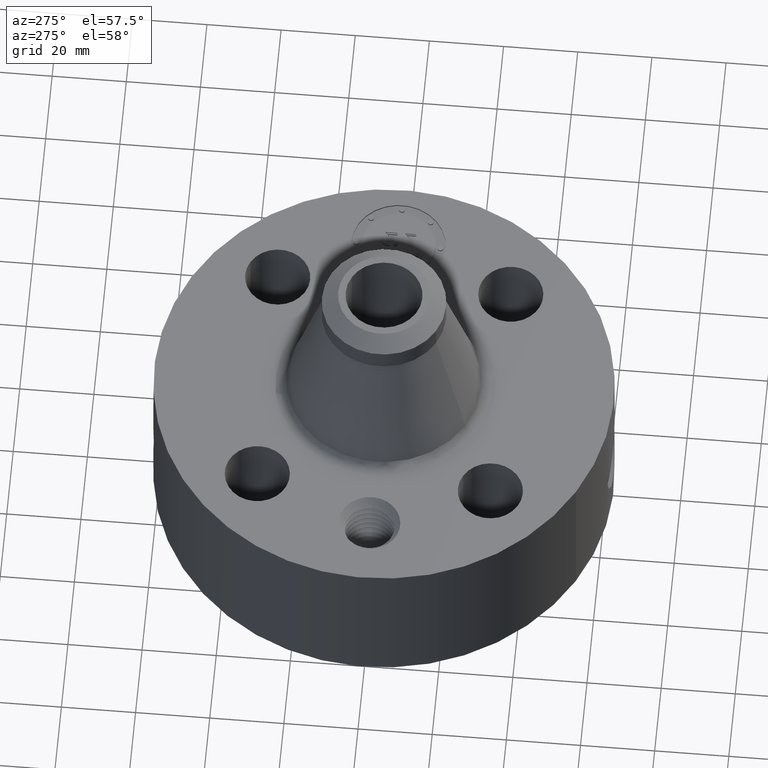
[diagram: clean part render]
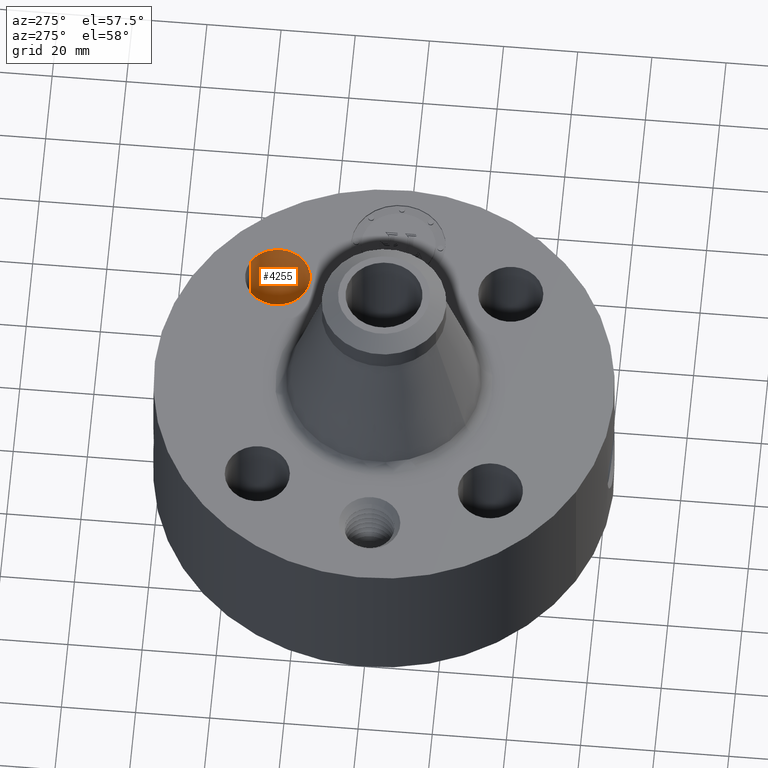
[diagram: same view with one face highlighted and labeled with its STEP entity id]
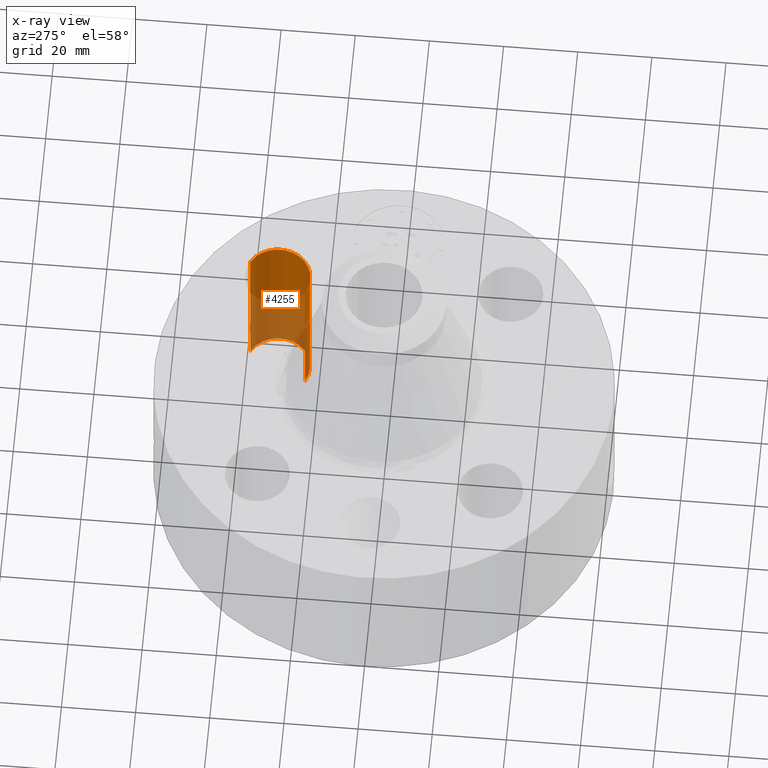
[diagram: x-ray of the same camera — body ghosted, the highlighted face saturated]
A machine part, auxiliary view. The second image highlights one B-rep face of the part: STEP entity #4255.
The next image is the same camera in x-ray: the body ghosted, the highlighted face saturated — about 47% of this face is hidden behind the body in this view.
In plain terms, the highlighted cylindrical surface (edge-blend (fillet) strip) has radius 8.763 mm, axis along (0, 0, -1).
Its self-contained STEP definition (entity closure, byte-faithful):
#3024=AXIS2_PLACEMENT_3D('Circle Axis2P3D',#3022,#3023,$) ;
#4216=AXIS2_PLACEMENT_3D('Cylinder Axis2P3D',#4213,#4214,#4215) ;
#4246=AXIS2_PLACEMENT_3D('Circle Axis2P3D',#4244,#4245,$) ;
#3022=CARTESIAN_POINT('Axis2P3D Location',(1.23743686708,1.23743686708,1.75000000001)) ;
#3026=CARTESIAN_POINT('Vertex',(1.4028386779,1.54020285093,1.75000000001)) ;
#3028=CARTESIAN_POINT('Vertex',(1.07203505626,0.934670883228,1.75000000001)) ;
#4213=CARTESIAN_POINT('Axis2P3D Location',(1.23743686708,1.23743686708,1.74606299213)) ;
#4218=CARTESIAN_POINT('Line Origine',(1.07203505626,0.934670883228,0.875000000003)) ;
#4222=CARTESIAN_POINT('Vertex',(1.07203505626,0.934670883228,0.)) ;
#4229=CARTESIAN_POINT('Vertex',(1.4028386779,1.54020285093,0.)) ;
#4232=CARTESIAN_POINT('Line Origine',(1.4028386779,1.54020285093,0.875000000003)) ;
#4244=CARTESIAN_POINT('Axis2P3D Location',(1.23743686708,1.23743686708,0.)) ;
#3023=DIRECTION('Axis2P3D Direction',(0.,0.,-0.0393700787402)) ;
#4214=DIRECTION('Axis2P3D Direction',(0.,0.,-0.0393700787402)) ;
#4215=DIRECTION('Axis2P3D XDirection',(0.0188750212049,0.0345504945626,0.)) ;
#4219=DIRECTION('Vector Direction',(0.,0.,-0.0393700787402)) ;
#4233=DIRECTION('Vector Direction',(0.,0.,-0.0393700787402)) ;
#4245=DIRECTION('Axis2P3D Direction',(0.,0.,-0.0393700787402)) ;
#4220=VECTOR('Line Direction',#4219,0.0393700787402) ;
#4234=VECTOR('Line Direction',#4233,0.0393700787402) ;
#4250=ORIENTED_EDGE('',*,*,#4236,.F.) ;
#4251=ORIENTED_EDGE('',*,*,#4248,.T.) ;
#4252=ORIENTED_EDGE('',*,*,#4224,.T.) ;
#4253=ORIENTED_EDGE('',*,*,#3030,.F.) ;
#4255=ADVANCED_FACE('PartBody',(#4254),#4217,.F.) ;
#3025=CIRCLE('generated circle',#3024,0.345000000001) ;
#4247=CIRCLE('generated circle',#4246,0.345000000001) ;
#4217=CYLINDRICAL_SURFACE('generated cylinder',#4216,0.345000000001) ;
#3030=EDGE_CURVE('',#3027,#3029,#3025,.T.) ;
#4224=EDGE_CURVE('',#4223,#3029,#4221,.F.) ;
#4236=EDGE_CURVE('',#4230,#3027,#4235,.F.) ;
#4248=EDGE_CURVE('',#4230,#4223,#4247,.T.) ;
#4249=EDGE_LOOP('',(#4250,#4251,#4252,#4253)) ;
#4254=FACE_OUTER_BOUND('',#4249,.T.) ;
#4221=LINE('Line',#4218,#4220) ;
#4235=LINE('Line',#4232,#4234) ;
#3027=VERTEX_POINT('',#3026) ;
#3029=VERTEX_POINT('',#3028) ;
#4223=VERTEX_POINT('',#4222) ;
#4230=VERTEX_POINT('',#4229) ;